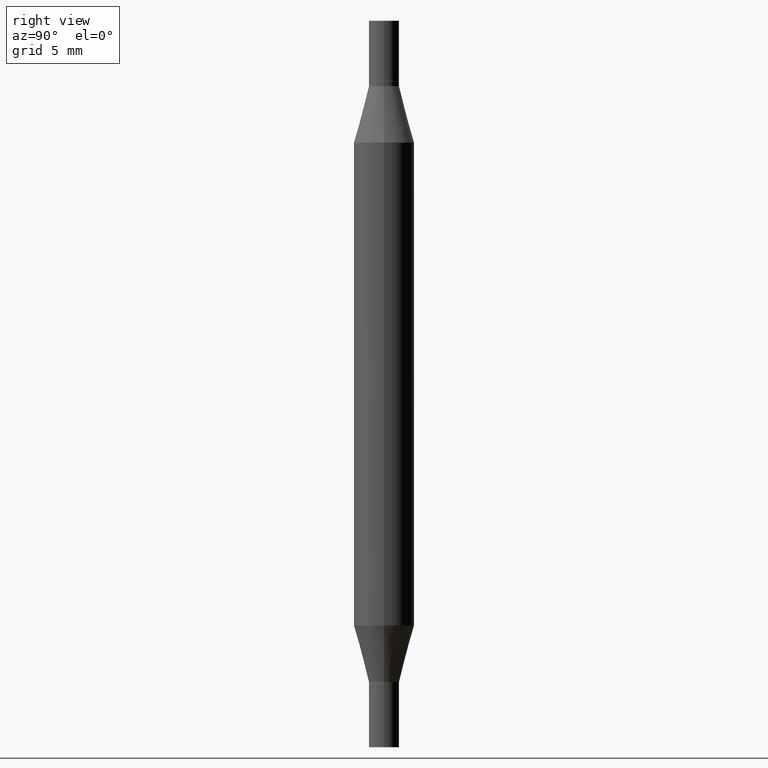
[diagram: clean part render]
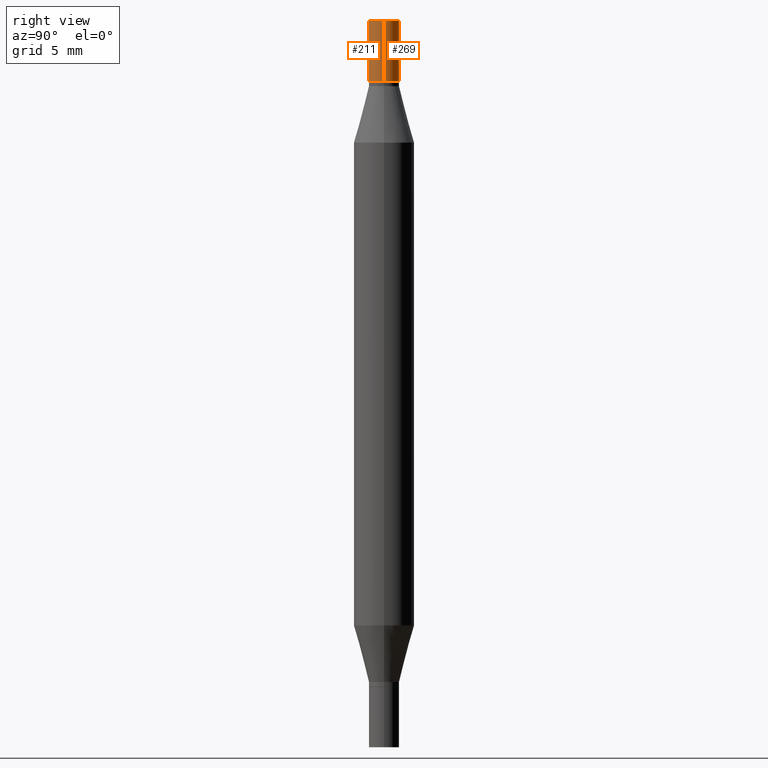
[diagram: same view with one multi-face feature highlighted, each face labeled with its STEP entity id]
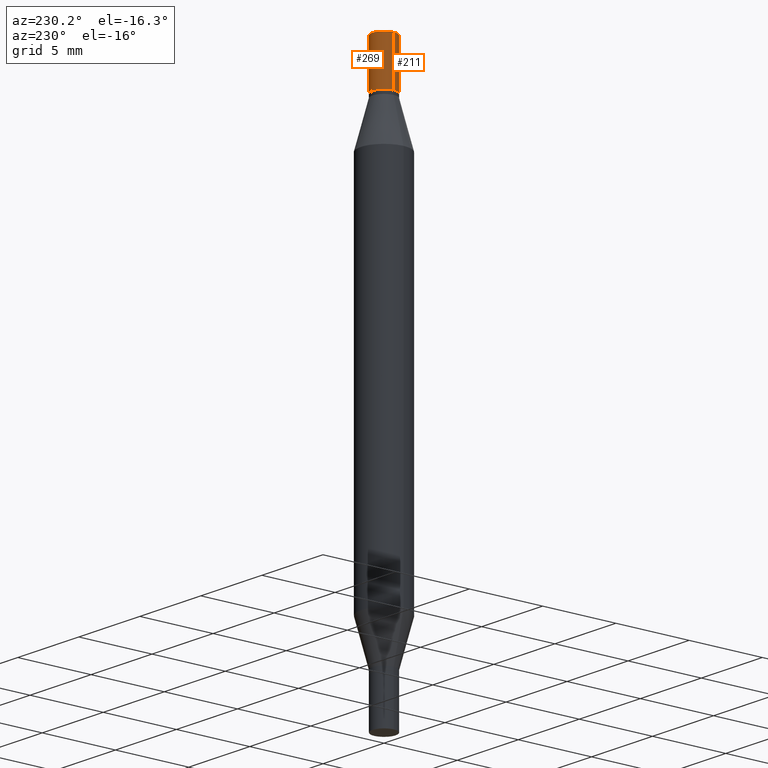
[diagram: same view with one multi-face feature highlighted, each face labeled with its STEP entity id]
A machine part, right view. The highlighted faces form ONE feature: a constant-radius fillet chain: 2 tangent blend faces with common blend radius 0.7937 mm. The faces share edges in the B-rep.
A second angle (auxiliary view) of the same feature is appended — it is thin or edge-on in the first view.
Their STEP definitions:
[1] entity #211 (Cylinder):
#14 = VERTEX_POINT ( 'NONE', #229 ) ;
#21 = EDGE_CURVE ( 'NONE', #403, #696, #645, .T. ) ;
#179 = EDGE_CURVE ( 'NONE', #14, #696, #741, .T. ) ;
#189 = ORIENTED_EDGE ( 'NONE', *, *, #179, .F. ) ;
#211 = ADVANCED_FACE ( 'NONE', ( #736 ), #966, .T. ) ;
#214 = EDGE_CURVE ( 'NONE', #925, #14, #531, .T. ) ;
#215 = DIRECTION ( 'NONE',  ( -2.445468806185136597E-29, -3.491805094961124077E-15, -1.000000000000000000 ) ) ;
#229 = CARTESIAN_POINT ( 'NONE',  ( 0.03125000000000000000, -2.179747665892116927E-16, 7.064927777134877600E-35 ) ) ;
#291 = CARTESIAN_POINT ( 'NONE',  ( 0.000000000000000000, -5.237464825353202639E-15, -1.500000000000000222 ) ) ;
#361 = VECTOR ( 'NONE', #430, 39.37007874015748143 ) ;
#367 = CARTESIAN_POINT ( 'NONE',  ( 0.03125000000000000000, -5.455682409030898474E-15, -1.500000000000000222 ) ) ;
#389 = ORIENTED_EDGE ( 'NONE', *, *, #214, .F. ) ;
#403 = VERTEX_POINT ( 'NONE', #870 ) ;
#430 = DIRECTION ( 'NONE',  ( -2.445468806185136877E-29, -3.491805094961123683E-15, -1.000000000000000000 ) ) ;
#442 = DIRECTION ( 'NONE',  ( 2.445468806185136597E-29, 3.491805094961124077E-15, 1.000000000000000000 ) ) ;
#483 = ORIENTED_EDGE ( 'NONE', *, *, #884, .T. ) ;
#506 = LINE ( 'NONE', #589, #361 ) ;
#522 = DIRECTION ( 'NONE',  ( 1.000000000000000000, -6.982962677686266711E-15, 2.260776888683160832E-33 ) ) ;
#531 = CIRCLE ( 'NONE', #878, 0.03125000000000000000 ) ;
#569 = EDGE_LOOP ( 'NONE', ( #389, #483, #723, #189 ) ) ;
#589 = CARTESIAN_POINT ( 'NONE',  ( -0.03125000000000000000, -5.023074262922842278E-15, -1.500000000000000222 ) ) ;
#622 = DIRECTION ( 'NONE',  ( 1.000000000000000000, -6.982962677686266711E-15, 0.000000000000000000 ) ) ;
#645 = CIRCLE ( 'NONE', #793, 0.03125000000000000000 ) ;
#689 = CARTESIAN_POINT ( 'NONE',  ( 3.362519608504562821E-29, -4.362328197816556034E-16, -0.1249999999999999029 ) ) ;
#696 = VERTEX_POINT ( 'NONE', #774 ) ;
#701 = AXIS2_PLACEMENT_3D ( 'NONE', #291, #215, #816 ) ;
#723 = ORIENTED_EDGE ( 'NONE', *, *, #21, .T. ) ;
#736 = FACE_OUTER_BOUND ( 'NONE', #569, .T. ) ;
#741 = LINE ( 'NONE', #367, #846 ) ;
#749 = CARTESIAN_POINT ( 'NONE',  ( -0.03125000000000000000, -3.604438916225850059E-18, 7.776428700517213427E-31 ) ) ;
#774 = CARTESIAN_POINT ( 'NONE',  ( 0.03125000000000000000, -6.544504034593514381E-16, -0.1249999999999999029 ) ) ;
#781 = DIRECTION ( 'NONE',  ( 2.445468806185136597E-29, 3.491805094961124077E-15, 1.000000000000000000 ) ) ;
#793 = AXIS2_PLACEMENT_3D ( 'NONE', #689, #781, #622 ) ;
#816 = DIRECTION ( 'NONE',  ( 1.000000000000000000, -6.982962677686262766E-15, 0.000000000000000000 ) ) ;
#846 = VECTOR ( 'NONE', #891, 39.37007874015748143 ) ;
#870 = CARTESIAN_POINT ( 'NONE',  ( -0.03125000000000000000, -3.604438916225850059E-18, -0.1249999999999999029 ) ) ;
#878 = AXIS2_PLACEMENT_3D ( 'NONE', #971, #442, #522 ) ;
#884 = EDGE_CURVE ( 'NONE', #925, #403, #506, .T. ) ;
#891 = DIRECTION ( 'NONE',  ( -2.445468806185136877E-29, -3.491805094961123683E-15, -1.000000000000000000 ) ) ;
#925 = VERTEX_POINT ( 'NONE', #749 ) ;
#966 = CYLINDRICAL_SURFACE ( 'NONE', #701, 0.03125000000000000000 ) ;
#971 = CARTESIAN_POINT ( 'NONE',  ( 3.668203209277704895E-29, 2.428170884841457504E-19, 0.000000000000000000 ) ) ;
[2] entity #269 (Cylinder):
#14 = VERTEX_POINT ( 'NONE', #229 ) ;
#36 = DIRECTION ( 'NONE',  ( -2.445468806185136597E-29, -3.491805094961124077E-15, -1.000000000000000000 ) ) ;
#110 = DIRECTION ( 'NONE',  ( 1.000000000000000000, -6.982962677686266711E-15, 0.000000000000000000 ) ) ;
#121 = CARTESIAN_POINT ( 'NONE',  ( 3.668203209277704895E-29, 2.428170884841457504E-19, 0.000000000000000000 ) ) ;
#143 = AXIS2_PLACEMENT_3D ( 'NONE', #724, #783, #110 ) ;
#162 = CIRCLE ( 'NONE', #718, 0.03125000000000000000 ) ;
#179 = EDGE_CURVE ( 'NONE', #14, #696, #741, .T. ) ;
#193 = CYLINDRICAL_SURFACE ( 'NONE', #647, 0.03125000000000000000 ) ;
#198 = CARTESIAN_POINT ( 'NONE',  ( 0.000000000000000000, -5.237464825353202639E-15, -1.500000000000000222 ) ) ;
#206 = DIRECTION ( 'NONE',  ( 1.000000000000000000, -6.982962677686262766E-15, 0.000000000000000000 ) ) ;
#229 = CARTESIAN_POINT ( 'NONE',  ( 0.03125000000000000000, -2.179747665892116927E-16, 7.064927777134877600E-35 ) ) ;
#258 = EDGE_LOOP ( 'NONE', ( #464, #546, #918, #313 ) ) ;
#269 = ADVANCED_FACE ( 'NONE', ( #954 ), #193, .T. ) ;
#313 = ORIENTED_EDGE ( 'NONE', *, *, #739, .T. ) ;
#342 = DIRECTION ( 'NONE',  ( 1.000000000000000000, -6.982962677686266711E-15, 2.260776888683160832E-33 ) ) ;
#361 = VECTOR ( 'NONE', #430, 39.37007874015748143 ) ;
#367 = CARTESIAN_POINT ( 'NONE',  ( 0.03125000000000000000, -5.455682409030898474E-15, -1.500000000000000222 ) ) ;
#403 = VERTEX_POINT ( 'NONE', #870 ) ;
#406 = EDGE_CURVE ( 'NONE', #14, #925, #162, .T. ) ;
#430 = DIRECTION ( 'NONE',  ( -2.445468806185136877E-29, -3.491805094961123683E-15, -1.000000000000000000 ) ) ;
#464 = ORIENTED_EDGE ( 'NONE', *, *, #884, .F. ) ;
#506 = LINE ( 'NONE', #589, #361 ) ;
#546 = ORIENTED_EDGE ( 'NONE', *, *, #406, .F. ) ;
#575 = CIRCLE ( 'NONE', #143, 0.03125000000000000000 ) ;
#589 = CARTESIAN_POINT ( 'NONE',  ( -0.03125000000000000000, -5.023074262922842278E-15, -1.500000000000000222 ) ) ;
#647 = AXIS2_PLACEMENT_3D ( 'NONE', #198, #36, #206 ) ;
#696 = VERTEX_POINT ( 'NONE', #774 ) ;
#718 = AXIS2_PLACEMENT_3D ( 'NONE', #121, #790, #342 ) ;
#724 = CARTESIAN_POINT ( 'NONE',  ( 3.362519608504562821E-29, -4.362328197816556034E-16, -0.1249999999999999029 ) ) ;
#739 = EDGE_CURVE ( 'NONE', #696, #403, #575, .T. ) ;
#741 = LINE ( 'NONE', #367, #846 ) ;
#749 = CARTESIAN_POINT ( 'NONE',  ( -0.03125000000000000000, -3.604438916225850059E-18, 7.776428700517213427E-31 ) ) ;
#774 = CARTESIAN_POINT ( 'NONE',  ( 0.03125000000000000000, -6.544504034593514381E-16, -0.1249999999999999029 ) ) ;
#783 = DIRECTION ( 'NONE',  ( 2.445468806185136597E-29, 3.491805094961124077E-15, 1.000000000000000000 ) ) ;
#790 = DIRECTION ( 'NONE',  ( 2.445468806185136597E-29, 3.491805094961124077E-15, 1.000000000000000000 ) ) ;
#846 = VECTOR ( 'NONE', #891, 39.37007874015748143 ) ;
#870 = CARTESIAN_POINT ( 'NONE',  ( -0.03125000000000000000, -3.604438916225850059E-18, -0.1249999999999999029 ) ) ;
#884 = EDGE_CURVE ( 'NONE', #925, #403, #506, .T. ) ;
#891 = DIRECTION ( 'NONE',  ( -2.445468806185136877E-29, -3.491805094961123683E-15, -1.000000000000000000 ) ) ;
#918 = ORIENTED_EDGE ( 'NONE', *, *, #179, .T. ) ;
#925 = VERTEX_POINT ( 'NONE', #749 ) ;
#954 = FACE_OUTER_BOUND ( 'NONE', #258, .T. ) ;